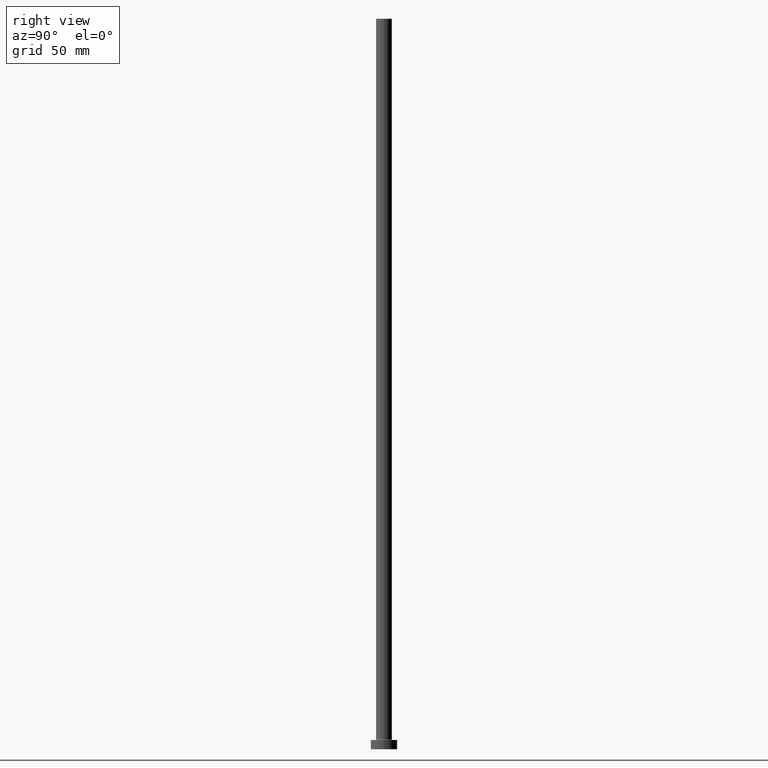
[diagram: clean part render]
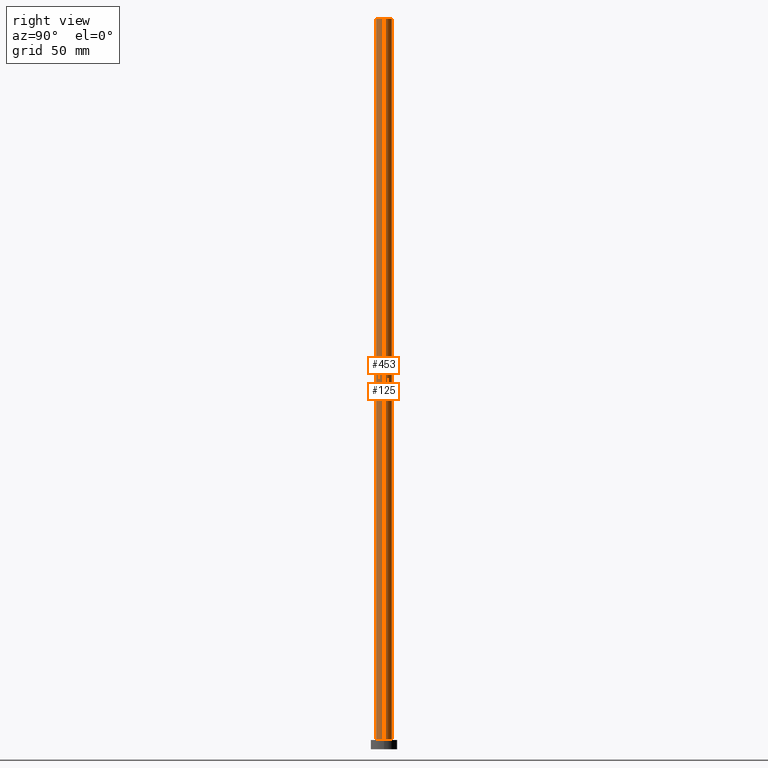
[diagram: same view with one multi-face feature highlighted, each face labeled with its STEP entity id]
A machine part, right view. The highlighted faces form ONE feature: a constant-radius fillet chain: 2 tangent blend faces with common blend radius 6 mm. The faces share edges in the B-rep.
Their STEP definitions:
[1] entity #125 (Cylinder):
#32 = CARTESIAN_POINT ( 'NONE',  ( 0.000000000000000000, 0.000000000000000000, 550.0000000000000000 ) ) ;
#33 = DIRECTION ( 'NONE',  ( -0.000000000000000000, -0.000000000000000000, -1.000000000000000000 ) ) ;
#38 = CARTESIAN_POINT ( 'NONE',  ( -6.000000000000000888, 0.000000000000000000, 7.499999999999951150 ) ) ;
#59 = ORIENTED_EDGE ( 'NONE', *, *, #234, .F. ) ;
#68 = VECTOR ( 'NONE', #33, 1000.000000000000000 ) ;
#82 = CARTESIAN_POINT ( 'NONE',  ( 0.000000000000000000, 0.000000000000000000, 550.0000000000000000 ) ) ;
#106 = CARTESIAN_POINT ( 'NONE',  ( -6.000000000000000888, 0.000000000000000000, 550.0000000000000000 ) ) ;
#125 = ADVANCED_FACE ( 'NONE', ( #400 ), #149, .T. ) ;
#126 = VERTEX_POINT ( 'NONE', #141 ) ;
#128 = ORIENTED_EDGE ( 'NONE', *, *, #338, .F. ) ;
#130 = EDGE_CURVE ( 'NONE', #126, #285, #215, .T. ) ;
#141 = CARTESIAN_POINT ( 'NONE',  ( 6.000000000000000888, 7.347880794884120722E-16, 550.0000000000000000 ) ) ;
#144 = ORIENTED_EDGE ( 'NONE', *, *, #461, .T. ) ;
#149 = CYLINDRICAL_SURFACE ( 'NONE', #369, 6.000000000000000888 ) ;
#198 = VERTEX_POINT ( 'NONE', #38 ) ;
#214 = CARTESIAN_POINT ( 'NONE',  ( 6.000000000000000888, 7.347880794884120722E-16, 7.499999999999951150 ) ) ;
#215 = LINE ( 'NONE', #294, #421 ) ;
#227 = DIRECTION ( 'NONE',  ( -0.000000000000000000, -0.000000000000000000, -1.000000000000000000 ) ) ;
#234 = EDGE_CURVE ( 'NONE', #308, #198, #392, .T. ) ;
#254 = CARTESIAN_POINT ( 'NONE',  ( -6.000000000000000888, 0.000000000000000000, 550.0000000000000000 ) ) ;
#255 = EDGE_LOOP ( 'NONE', ( #128, #340, #144, #59 ) ) ;
#263 = DIRECTION ( 'NONE',  ( 0.000000000000000000, 0.000000000000000000, 1.000000000000000000 ) ) ;
#266 = DIRECTION ( 'NONE',  ( -0.000000000000000000, -0.000000000000000000, -1.000000000000000000 ) ) ;
#267 = CARTESIAN_POINT ( 'NONE',  ( 0.000000000000000000, 0.000000000000000000, 7.499999999999951150 ) ) ;
#285 = VERTEX_POINT ( 'NONE', #214 ) ;
#294 = CARTESIAN_POINT ( 'NONE',  ( 6.000000000000000888, 7.347880794884120722E-16, 550.0000000000000000 ) ) ;
#302 = DIRECTION ( 'NONE',  ( 0.000000000000000000, 0.000000000000000000, 1.000000000000000000 ) ) ;
#308 = VERTEX_POINT ( 'NONE', #106 ) ;
#312 = CIRCLE ( 'NONE', #343, 6.000000000000000888 ) ;
#319 = DIRECTION ( 'NONE',  ( -1.000000000000000000, 0.000000000000000000, 0.000000000000000000 ) ) ;
#338 = EDGE_CURVE ( 'NONE', #126, #308, #312, .T. ) ;
#340 = ORIENTED_EDGE ( 'NONE', *, *, #130, .T. ) ;
#343 = AXIS2_PLACEMENT_3D ( 'NONE', #82, #263, #353 ) ;
#344 = DIRECTION ( 'NONE',  ( 1.000000000000000000, 0.000000000000000000, 0.000000000000000000 ) ) ;
#348 = CIRCLE ( 'NONE', #380, 6.000000000000000888 ) ;
#353 = DIRECTION ( 'NONE',  ( 1.000000000000000000, 0.000000000000000000, 0.000000000000000000 ) ) ;
#369 = AXIS2_PLACEMENT_3D ( 'NONE', #32, #266, #319 ) ;
#380 = AXIS2_PLACEMENT_3D ( 'NONE', #267, #302, #344 ) ;
#392 = LINE ( 'NONE', #254, #68 ) ;
#400 = FACE_OUTER_BOUND ( 'NONE', #255, .T. ) ;
#421 = VECTOR ( 'NONE', #227, 1000.000000000000000 ) ;
#461 = EDGE_CURVE ( 'NONE', #285, #198, #348, .T. ) ;
[2] entity #453 (Cylinder):
#23 = EDGE_LOOP ( 'NONE', ( #443, #396, #50, #105 ) ) ;
#29 = DIRECTION ( 'NONE',  ( 0.000000000000000000, 0.000000000000000000, 1.000000000000000000 ) ) ;
#33 = DIRECTION ( 'NONE',  ( -0.000000000000000000, -0.000000000000000000, -1.000000000000000000 ) ) ;
#38 = CARTESIAN_POINT ( 'NONE',  ( -6.000000000000000888, 0.000000000000000000, 7.499999999999951150 ) ) ;
#50 = ORIENTED_EDGE ( 'NONE', *, *, #234, .T. ) ;
#68 = VECTOR ( 'NONE', #33, 1000.000000000000000 ) ;
#105 = ORIENTED_EDGE ( 'NONE', *, *, #137, .T. ) ;
#106 = CARTESIAN_POINT ( 'NONE',  ( -6.000000000000000888, 0.000000000000000000, 550.0000000000000000 ) ) ;
#109 = CARTESIAN_POINT ( 'NONE',  ( 0.000000000000000000, 0.000000000000000000, 7.499999999999951150 ) ) ;
#126 = VERTEX_POINT ( 'NONE', #141 ) ;
#130 = EDGE_CURVE ( 'NONE', #126, #285, #215, .T. ) ;
#131 = CIRCLE ( 'NONE', #231, 6.000000000000000888 ) ;
#134 = DIRECTION ( 'NONE',  ( 1.000000000000000000, 0.000000000000000000, 0.000000000000000000 ) ) ;
#135 = CIRCLE ( 'NONE', #260, 6.000000000000000888 ) ;
#137 = EDGE_CURVE ( 'NONE', #198, #285, #131, .T. ) ;
#141 = CARTESIAN_POINT ( 'NONE',  ( 6.000000000000000888, 7.347880794884120722E-16, 550.0000000000000000 ) ) ;
#153 = DIRECTION ( 'NONE',  ( -1.000000000000000000, 0.000000000000000000, 0.000000000000000000 ) ) ;
#174 = CARTESIAN_POINT ( 'NONE',  ( 0.000000000000000000, 0.000000000000000000, 550.0000000000000000 ) ) ;
#183 = DIRECTION ( 'NONE',  ( -0.000000000000000000, -0.000000000000000000, -1.000000000000000000 ) ) ;
#198 = VERTEX_POINT ( 'NONE', #38 ) ;
#214 = CARTESIAN_POINT ( 'NONE',  ( 6.000000000000000888, 7.347880794884120722E-16, 7.499999999999951150 ) ) ;
#215 = LINE ( 'NONE', #294, #421 ) ;
#223 = EDGE_CURVE ( 'NONE', #308, #126, #135, .T. ) ;
#227 = DIRECTION ( 'NONE',  ( -0.000000000000000000, -0.000000000000000000, -1.000000000000000000 ) ) ;
#231 = AXIS2_PLACEMENT_3D ( 'NONE', #109, #352, #303 ) ;
#234 = EDGE_CURVE ( 'NONE', #308, #198, #392, .T. ) ;
#254 = CARTESIAN_POINT ( 'NONE',  ( -6.000000000000000888, 0.000000000000000000, 550.0000000000000000 ) ) ;
#260 = AXIS2_PLACEMENT_3D ( 'NONE', #448, #29, #134 ) ;
#285 = VERTEX_POINT ( 'NONE', #214 ) ;
#294 = CARTESIAN_POINT ( 'NONE',  ( 6.000000000000000888, 7.347880794884120722E-16, 550.0000000000000000 ) ) ;
#299 = FACE_OUTER_BOUND ( 'NONE', #23, .T. ) ;
#303 = DIRECTION ( 'NONE',  ( 1.000000000000000000, 0.000000000000000000, 0.000000000000000000 ) ) ;
#308 = VERTEX_POINT ( 'NONE', #106 ) ;
#325 = CYLINDRICAL_SURFACE ( 'NONE', #438, 6.000000000000000888 ) ;
#352 = DIRECTION ( 'NONE',  ( 0.000000000000000000, 0.000000000000000000, 1.000000000000000000 ) ) ;
#392 = LINE ( 'NONE', #254, #68 ) ;
#396 = ORIENTED_EDGE ( 'NONE', *, *, #223, .F. ) ;
#421 = VECTOR ( 'NONE', #227, 1000.000000000000000 ) ;
#438 = AXIS2_PLACEMENT_3D ( 'NONE', #174, #183, #153 ) ;
#443 = ORIENTED_EDGE ( 'NONE', *, *, #130, .F. ) ;
#448 = CARTESIAN_POINT ( 'NONE',  ( 0.000000000000000000, 0.000000000000000000, 550.0000000000000000 ) ) ;
#453 = ADVANCED_FACE ( 'NONE', ( #299 ), #325, .T. ) ;